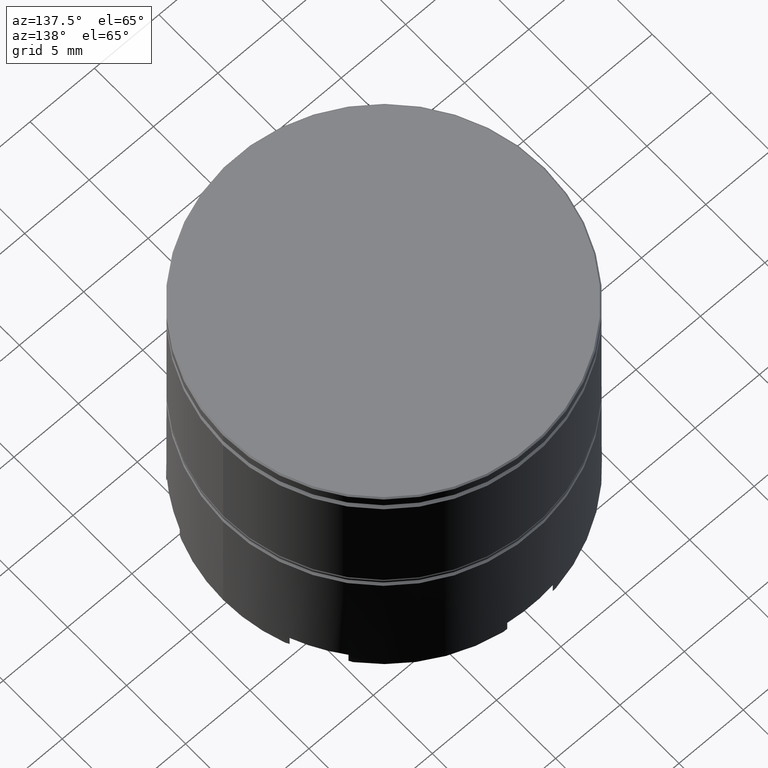
[diagram: clean part render]
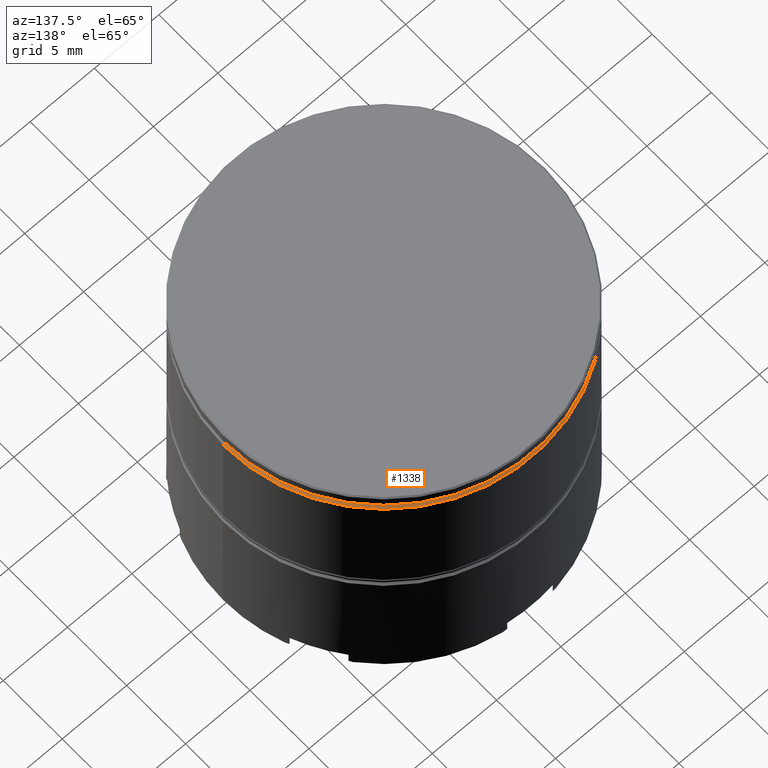
[diagram: same view with one face highlighted and labeled with its STEP entity id]
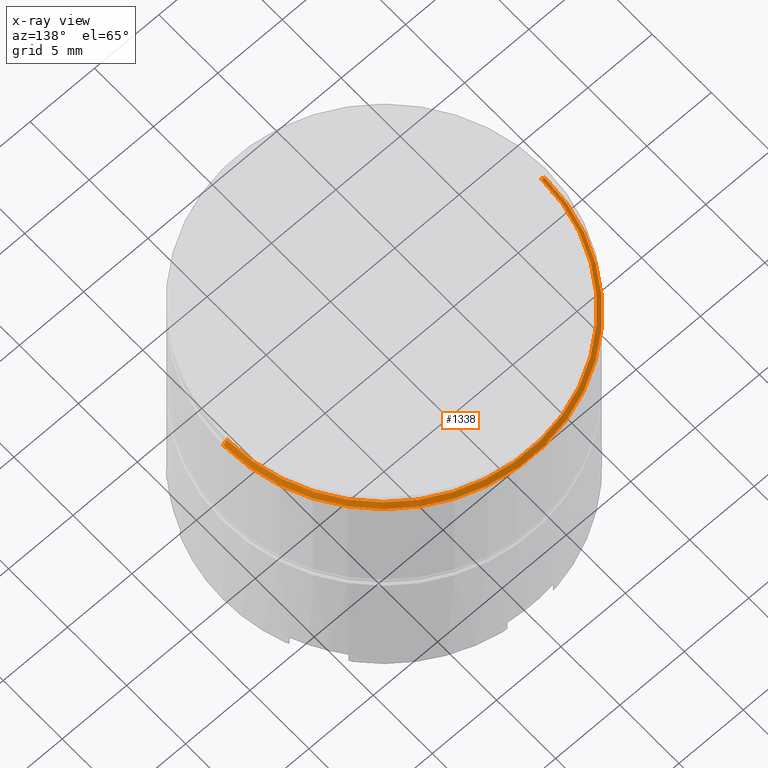
[diagram: x-ray of the same camera — body ghosted, the highlighted face saturated]
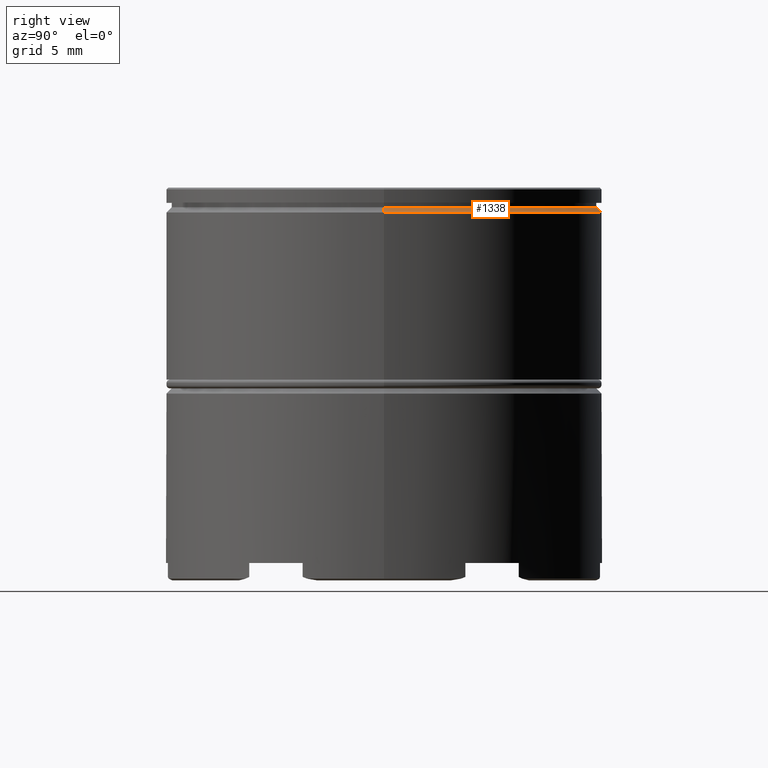
[diagram: same view with one face highlighted and labeled with its STEP entity id]
A machine part, auxiliary view. The second image highlights one B-rep face of the part: STEP entity #1338.
The next image is the same camera in x-ray: the body ghosted, the highlighted face saturated — about 0% of this face is hidden behind the body in this view.
A second angle (right view) of the same face is appended — the face is thin or edge-on in the first view.
In plain terms, the highlighted conical surface has half-angle 45 deg.
Its self-contained STEP definition (entity closure, byte-faithful):
#11 = CARTESIAN_POINT ( 'NONE',  ( 12.19999999999999218, 1.494069094959770070E-15, -1.125000000000000222 ) ) ;
#29 = ORIENTED_EDGE ( 'NONE', *, *, #1189, .T. ) ;
#43 = LINE ( 'NONE', #213, #1351 ) ;
#208 = AXIS2_PLACEMENT_3D ( 'NONE', #769, #1518, #761 ) ;
#213 = CARTESIAN_POINT ( 'NONE',  ( -12.19999999999999218, 0.000000000000000000, -1.125000000000000222 ) ) ;
#326 = DIRECTION ( 'NONE',  ( 1.000000000000000000, 0.000000000000000000, 0.000000000000000000 ) ) ;
#330 = CARTESIAN_POINT ( 'NONE',  ( 0.000000000000000000, 0.000000000000000000, -1.125000000000000222 ) ) ;
#334 = CARTESIAN_POINT ( 'NONE',  ( -12.50000000000000000, 1.530808498934191521E-15, -1.425000000000010481 ) ) ;
#397 = ORIENTED_EDGE ( 'NONE', *, *, #978, .F. ) ;
#408 = AXIS2_PLACEMENT_3D ( 'NONE', #330, #1223, #415 ) ;
#415 = DIRECTION ( 'NONE',  ( 1.000000000000000000, 0.000000000000000000, 0.000000000000000000 ) ) ;
#457 = CIRCLE ( 'NONE', #408, 12.20000000000000107 ) ;
#513 = VERTEX_POINT ( 'NONE', #800 ) ;
#591 = AXIS2_PLACEMENT_3D ( 'NONE', #1473, #702, #326 ) ;
#642 = VECTOR ( 'NONE', #1523, 1000.000000000000000 ) ;
#702 = DIRECTION ( 'NONE',  ( 0.000000000000000000, 0.000000000000000000, -1.000000000000000000 ) ) ;
#730 = CARTESIAN_POINT ( 'NONE',  ( -12.20000000000000107, 1.494069094959771056E-15, -1.125000000000000222 ) ) ;
#761 = DIRECTION ( 'NONE',  ( -1.000000000000000000, 0.000000000000000000, 0.000000000000000000 ) ) ;
#769 = CARTESIAN_POINT ( 'NONE',  ( 0.000000000000000000, 0.000000000000000000, -1.125000000000000222 ) ) ;
#800 = CARTESIAN_POINT ( 'NONE',  ( 12.20000000000000107, 0.000000000000000000, -1.125000000000000222 ) ) ;
#817 = VERTEX_POINT ( 'NONE', #730 ) ;
#899 = VERTEX_POINT ( 'NONE', #334 ) ;
#906 = LINE ( 'NONE', #11, #642 ) ;
#957 = EDGE_LOOP ( 'NONE', ( #995, #29, #397, #1627 ) ) ;
#971 = CARTESIAN_POINT ( 'NONE',  ( 12.50000000000000000, 0.000000000000000000, -1.425000000000010481 ) ) ;
#978 = EDGE_CURVE ( 'NONE', #899, #1281, #1321, .T. ) ;
#995 = ORIENTED_EDGE ( 'NONE', *, *, #1358, .F. ) ;
#1189 = EDGE_CURVE ( 'NONE', #513, #1281, #906, .T. ) ;
#1223 = DIRECTION ( 'NONE',  ( -0.000000000000000000, -0.000000000000000000, 1.000000000000000000 ) ) ;
#1280 = FACE_OUTER_BOUND ( 'NONE', #957, .T. ) ;
#1281 = VERTEX_POINT ( 'NONE', #971 ) ;
#1321 = CIRCLE ( 'NONE', #591, 12.50000000000000000 ) ;
#1338 = ADVANCED_FACE ( 'NONE', ( #1280 ), #1407, .T. ) ;
#1351 = VECTOR ( 'NONE', #1487, 1000.000000000000000 ) ;
#1358 = EDGE_CURVE ( 'NONE', #513, #817, #457, .T. ) ;
#1360 = EDGE_CURVE ( 'NONE', #817, #899, #43, .T. ) ;
#1407 = CONICAL_SURFACE ( 'NONE', #208, 12.19999999999999218, 0.7853981633974453924 ) ;
#1473 = CARTESIAN_POINT ( 'NONE',  ( 0.000000000000000000, 0.000000000000000000, -1.425000000000010481 ) ) ;
#1487 = DIRECTION ( 'NONE',  ( -0.7071067811865454633, 0.000000000000000000, -0.7071067811865495711 ) ) ;
#1518 = DIRECTION ( 'NONE',  ( 0.000000000000000000, 0.000000000000000000, -1.000000000000000000 ) ) ;
#1523 = DIRECTION ( 'NONE',  ( 0.7071067811865454633, 8.659560562354908206E-17, -0.7071067811865495711 ) ) ;
#1627 = ORIENTED_EDGE ( 'NONE', *, *, #1360, .F. ) ;